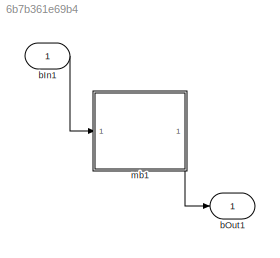
MODEL slx_6b7b361e69b4
KIND model
CONFIG AbsTol = auto
CONFIG EnableMultiTasking = off
CONFIG FixedStep = auto
CONFIG MaxStep = auto
CONFIG MinStep = auto
CONFIG RelTol = 1e-3
CONFIG SampleTimeConstraint = Unconstrained
CONFIG Solver = VariableStepAuto
CONFIG SolverName = VariableStepAuto
CONFIG StartTime = 0.0
CONFIG StopTime = 10.0
BLOCK [Inport] bIn1
  IconDisplay = Port number
  OutDataTypeStr = int32
BLOCK [Outport] bOut1
  IconDisplay = Port number
  OutDataTypeStr = int32
BLOCK [ModelReference] mb1
  ModelNameDialog = Mission_B1
  ModelReferenceVersion = 1.1
  Ports = [1, 1]
LINE bIn1:1 -> mb1:1
LINE mb1:1 -> bOut1:1
